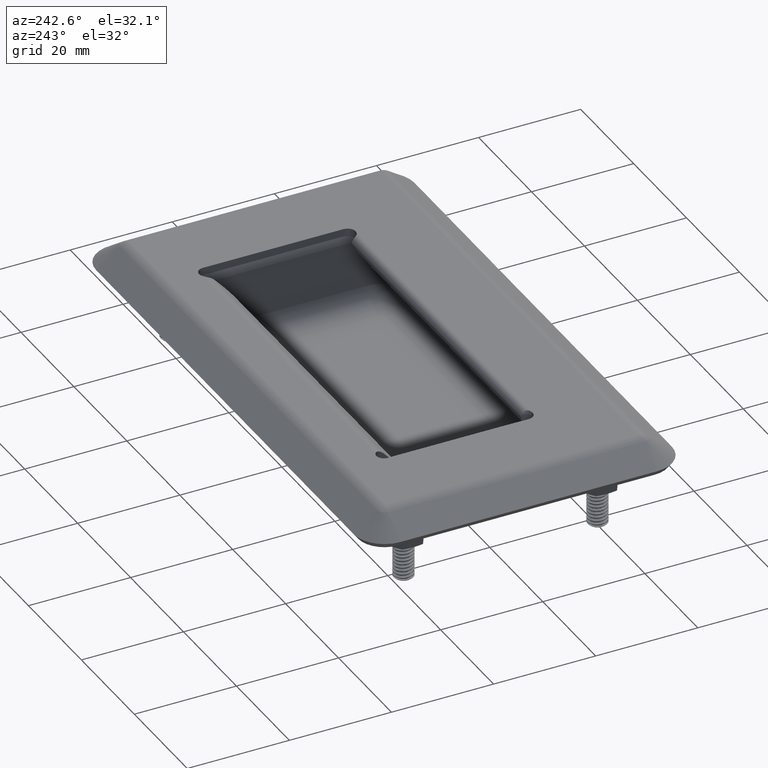
[diagram: clean part render]
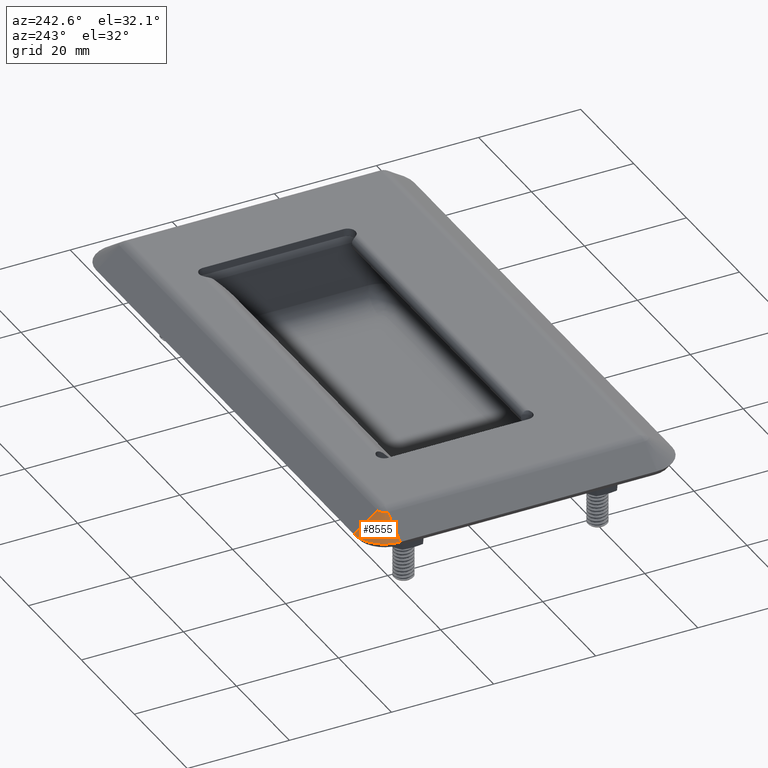
[diagram: same view with one face highlighted and labeled with its STEP entity id]
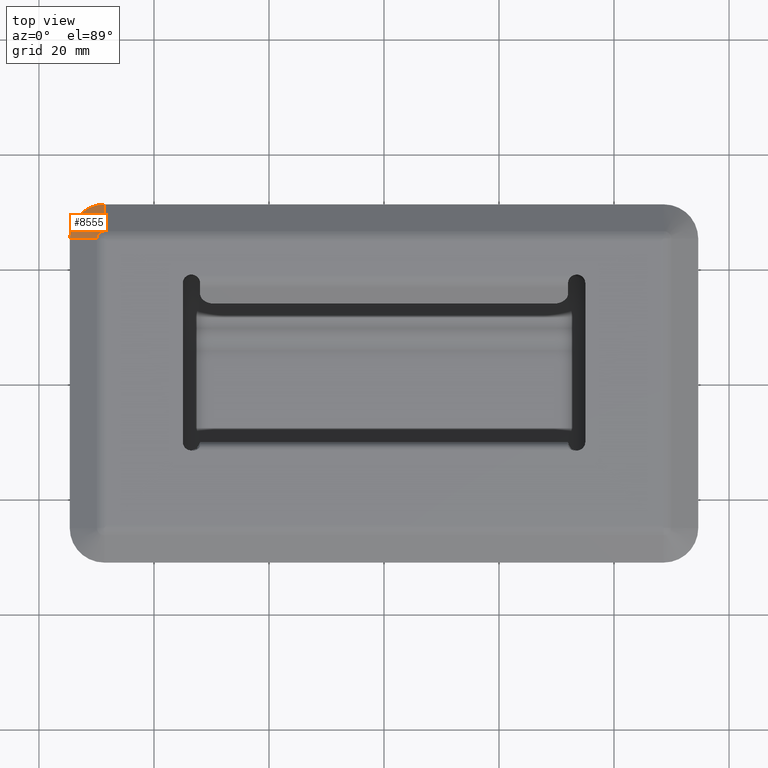
[diagram: same view with one face highlighted and labeled with its STEP entity id]
A machine part, auxiliary view. The second image highlights one B-rep face of the part: STEP entity #8555.
A second angle (top view) of the same face is appended — the face is thin or edge-on in the first view.
In plain terms, the highlighted conical surface has half-angle 53.333 deg.
Its self-contained STEP definition (entity closure, byte-faithful):
#98=CONICAL_SURFACE('',#9258,3.64721692712457,0.930839759700194);
#511=CIRCLE('',#9257,1.29443385424914);
#512=CIRCLE('',#9259,6.);
#1286=FACE_OUTER_BOUND('',#1820,.T.);
#1820=EDGE_LOOP('',(#7622,#7623,#7624,#7625));
#2357=LINE('',#21433,#2915);
#2389=LINE('',#21560,#2947);
#2915=VECTOR('',#11050,5.86639929417975);
#2947=VECTOR('',#11164,5.86639929417975);
#3988=VERTEX_POINT('',#21430);
#3989=VERTEX_POINT('',#21432);
#4012=VERTEX_POINT('',#21533);
#4016=VERTEX_POINT('',#21559);
#5199=EDGE_CURVE('',#3989,#3988,#2357,.T.);
#5251=EDGE_CURVE('',#4016,#4012,#2389,.T.);
#5258=EDGE_CURVE('',#3988,#4012,#511,.T.);
#5259=EDGE_CURVE('',#3989,#4016,#512,.T.);
#7622=ORIENTED_EDGE('',*,*,#5199,.T.);
#7623=ORIENTED_EDGE('',*,*,#5258,.T.);
#7624=ORIENTED_EDGE('',*,*,#5251,.F.);
#7625=ORIENTED_EDGE('',*,*,#5259,.F.);
#8555=ADVANCED_FACE('',(#1286),#98,.T.);
#9257=AXIS2_PLACEMENT_3D('',#21580,#11178,#11179);
#9258=AXIS2_PLACEMENT_3D('',#21581,#11180,#11181);
#9259=AXIS2_PLACEMENT_3D('',#21582,#11182,#11183);
#11050=DIRECTION('',(0.802121695060789,0.,0.597160603450032));
#11164=DIRECTION('',(4.91157883191422E-17,-0.802121695060789,0.597160603450032));
#11178=DIRECTION('center_axis',(0.,0.,-1.));
#11179=DIRECTION('ref_axis',(-1.,-5.78940777206945E-15,0.));
#11180=DIRECTION('center_axis',(0.,0.,-1.));
#11181=DIRECTION('ref_axis',(-1.,0.,0.));
#11182=DIRECTION('center_axis',(0.,0.,-1.));
#11183=DIRECTION('ref_axis',(-1.,-1.01770443923973E-15,0.));
#21430=CARTESIAN_POINT('',(-49.9444338542491,25.15,-0.593634914817633));
#21432=CARTESIAN_POINT('',(-54.65,25.15,-4.09681745740883));
#21433=CARTESIAN_POINT('',(-54.65,25.15,-4.09681745740883));
#21533=CARTESIAN_POINT('',(-48.65,26.4444338542491,-0.593634914817633));
#21559=CARTESIAN_POINT('',(-48.65,31.15,-4.09681745740883));
#21560=CARTESIAN_POINT('',(-48.65,31.15,-4.09681745740883));
#21580=CARTESIAN_POINT('Origin',(-48.65,25.15,-0.593634914817633));
#21581=CARTESIAN_POINT('Origin',(-48.65,25.15,-2.34522618611323));
#21582=CARTESIAN_POINT('Origin',(-48.65,25.15,-4.09681745740883));